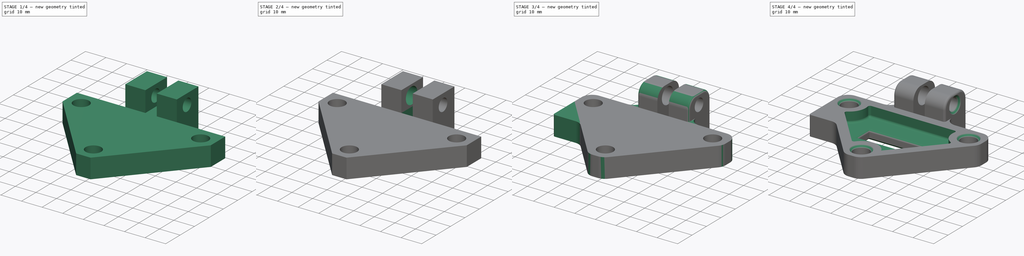
[diagram: build sequence overview — one tinted view per stage of 4, left to right]
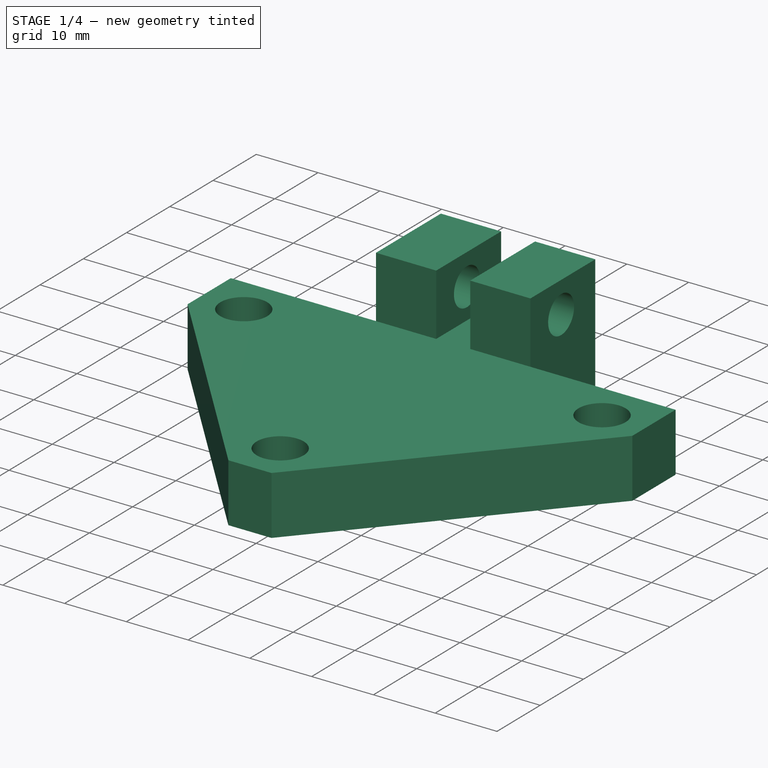
[diagram: stage 1 of 4 — iso view after this stage's code; geometry added in this stage tinted green]
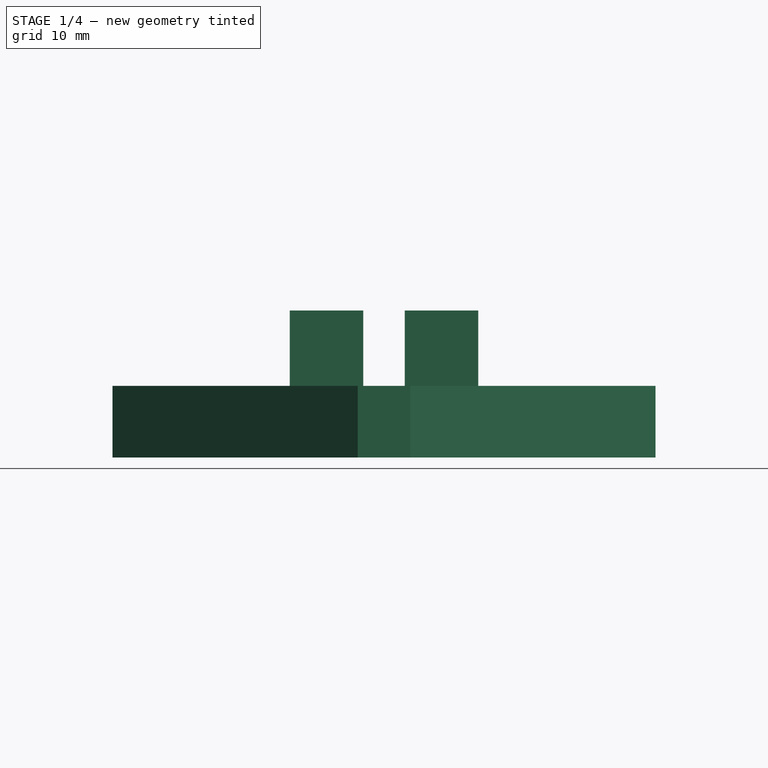
[diagram: stage 1 of 4 — front view after this stage's code; geometry added in this stage tinted green]
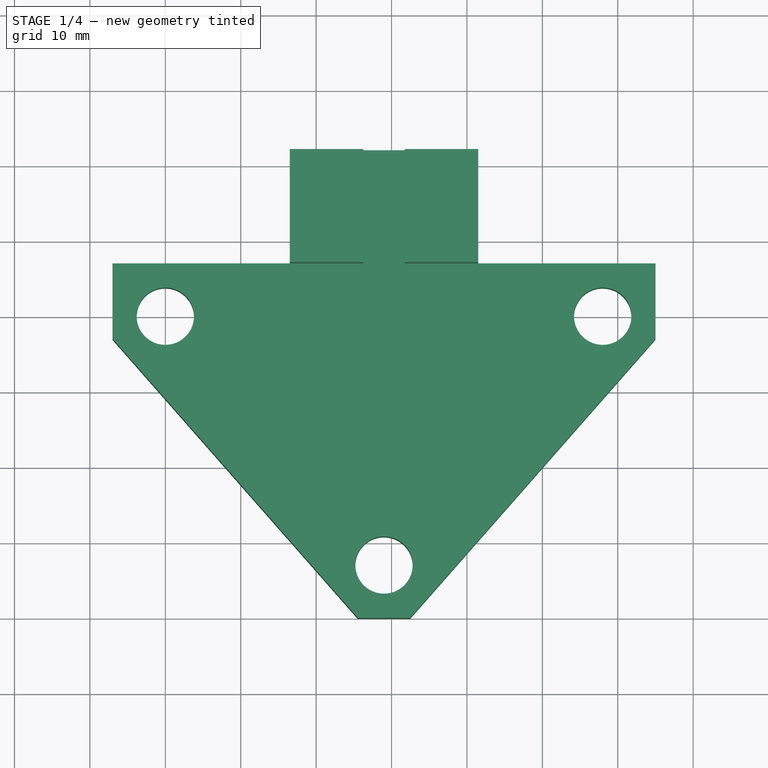
[diagram: stage 1 of 4 — top view after this stage's code; geometry added in this stage tinted green]
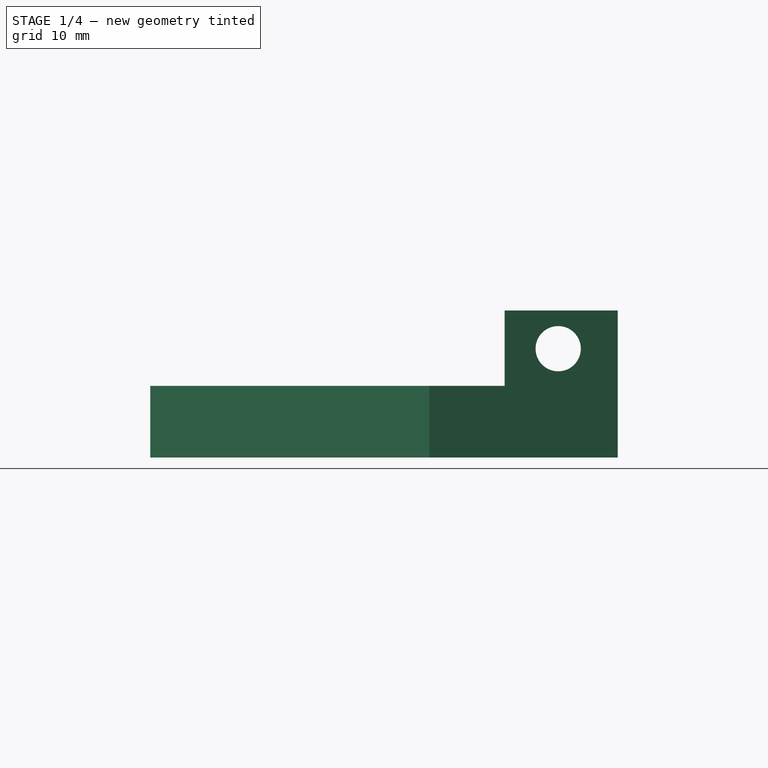
[diagram: stage 1 of 4 — right view after this stage's code; geometry added in this stage tinted green]
FCSTD DOCUMENT  (FreeCAD 0.17R11850 (Git))
Label: mini_indicator_mount
License: All rights reserved
LicenseURL: http://en.wikipedia.org/wiki/All_rights_reserved
objects: Sketcher::SketchObject×9, PartDesign::Pocket×7, PartDesign::Fillet×3, PartDesign::Pad×2, PartDesign::Chamfer×1, PartDesign::Body×1
note: 32 computed .brp shape members not serialized (recipe doc carries the construction recipe); baked Part::Feature solids carry a one-line shape summary decoded from their .brp

FEATURE [Sketcher::SketchObject] Sketch
  MapMode = 5
  Support = -> [XY_Plane]
  sketch-geometry (17):
    g0: Circle CenterX=0 CenterY=0 CenterZ=0 NormalX=0 NormalY=0 NormalZ=1 Radius=3.8
    g1: Circle CenterX=58 CenterY=0 CenterZ=0 NormalX=0 NormalY=0 NormalZ=1 Radius=3.8
    g2: Circle CenterX=29 CenterY=-33 CenterZ=0 NormalX=0 NormalY=0 NormalZ=1 Radius=3.8
    g3: LineSegment [constr] StartX=0 StartY=0 StartZ=0 EndX=58 EndY=0 EndZ=0
    g4: LineSegment [constr] StartX=29 StartY=-33 StartZ=0 EndX=29 EndY=0 EndZ=0
    g5: LineSegment StartX=-7 StartY=7 StartZ=0 EndX=-7 EndY=-3 EndZ=0
    g6: LineSegment StartX=-7 StartY=-3 StartZ=0 EndX=25.5152 EndY=-40 EndZ=0
    g7: LineSegment StartX=25.5152 StartY=-40 StartZ=0 EndX=32.4848 EndY=-40 EndZ=0
    g8: LineSegment StartX=32.4848 StartY=-40 StartZ=0 EndX=65 EndY=-3 EndZ=0
    g9: LineSegment StartX=65 StartY=-3 StartZ=0 EndX=65 EndY=7 EndZ=0
    g10: LineSegment StartX=65 StartY=7 StartZ=0 EndX=41.5 EndY=7 EndZ=0
    g11: LineSegment [constr] StartX=58 StartY=0 StartZ=0 EndX=29 EndY=-33 EndZ=0
    g12: LineSegment [constr] StartX=0 StartY=0 StartZ=0 EndX=29 EndY=-33 EndZ=0
    g13: LineSegment StartX=16.5 StartY=22 StartZ=0 EndX=41.5 EndY=22 EndZ=0
    g14: LineSegment StartX=41.5 StartY=22 StartZ=0 EndX=41.5 EndY=7 EndZ=0
    g15: LineSegment StartX=16.5 StartY=7 StartZ=0 EndX=16.5 EndY=22 EndZ=0
    g16: LineSegment StartX=16.5 StartY=7 StartZ=0 EndX=-7 EndY=7 EndZ=0
  constraints (45):
    c: Radius(g0) = 3.8
    c: Equal(g0,g1)
    c: Equal(g0,g2)
    c: Coincident(g2,g4)
    c: Coincident(g0,g3)
    c: Coincident(g1,g3)
    c: Symmetric(g1,g0,g4)
    c: Vertical(g4)
    c: Horizontal(g3)
    c: Coincident(g0,g-1)
    c: DistanceX(g3,g3) = 58
    c: DistanceY(g4,g4) = 33
    c: Vertical(g5)
    c: Coincident(g5,g6)
    c: Coincident(g6,g7)
    c: Horizontal(g7)
    c: Coincident(g7,g8)
    c: Coincident(g8,g9)
    c: Vertical(g9)
    c: Coincident(g9,g10)
    c: Coincident(g16,g5)
    c: Horizontal(g10)
    c: Equal(g8,g6)
    c: Equal(g9,g5)
    c: DistanceX(g5) = -7
    c: DistanceY(g5) = 7
    c: DistanceX(g1,g9) = 7
    c: DistanceY(g7,g2) = 7
    c: Coincident(g11,g1)
    c: Coincident(g11,g2)
    c: Parallel(g11,g8)
    c: Coincident(g12,g-1)
    c: Coincident(g12,g2)
    c: DistanceY(g9,g9) = 10
    c: Coincident(g13,g14)
    c: Coincident(g15,g13)
    c: Horizontal(g13)
    c: Vertical(g14)
    c: Vertical(g15)
    c: DistanceY(g13) = 22
    c: Coincident(g10,g14)
    c: Coincident(g16,g15)
    c: Tangent(g10,g16)
    c: DistanceX(g13,g13) = 25
    c: Equal(g16,g10)
FEATURE [PartDesign::Pad] Pad
  Length = 19.5
  Length2 = 100
  Profile = -> Sketch
  Type = 0
FEATURE [Sketcher::SketchObject] Sketch001
  ExternalGeometry = -> [Pad]
  MapMode = 5
  Placement = pos=(0,0,19.5) rot=(0,0,1;0rad)
  Support = -> [Pad]
  sketch-geometry (18):
    g0: LineSegment [constr] StartX=16.5 StartY=22 StartZ=0 EndX=26.25 EndY=22 EndZ=0
    g1: LineSegment [constr] StartX=26.25 StartY=22 StartZ=0 EndX=26.25 EndY=7 EndZ=0
    g2: LineSegment [constr] StartX=26.25 StartY=7 StartZ=0 EndX=16.5 EndY=7 EndZ=0
    g3: LineSegment [constr] StartX=16.5 StartY=7 StartZ=0 EndX=16.5 EndY=22 EndZ=0
    g4: LineSegment [constr] StartX=31.75 StartY=22 StartZ=0 EndX=41.5 EndY=22 EndZ=0
    g5: LineSegment [constr] StartX=41.5 StartY=22 StartZ=0 EndX=41.5 EndY=7 EndZ=0
    g6: LineSegment [constr] StartX=41.5 StartY=7 StartZ=0 EndX=31.75 EndY=7 EndZ=0
    g7: LineSegment [constr] StartX=31.75 StartY=7 StartZ=0 EndX=31.75 EndY=22 EndZ=0
    g8: LineSegment StartX=26.25 StartY=22 StartZ=0 EndX=31.75 EndY=22 EndZ=0
    g9: LineSegment StartX=31.75 StartY=22 StartZ=0 EndX=31.75 EndY=7 EndZ=0
    g10: LineSegment StartX=31.75 StartY=7 StartZ=0 EndX=65 EndY=7 EndZ=0
    g11: LineSegment StartX=65 StartY=7 StartZ=0 EndX=65 EndY=-3 EndZ=0
    g12: LineSegment StartX=65 StartY=-3 StartZ=0 EndX=32.4848 EndY=-40 EndZ=0
    g13: LineSegment StartX=32.4848 StartY=-40 StartZ=0 EndX=25.5152 EndY=-40 EndZ=0
    g14: LineSegment StartX=25.5152 StartY=-40 StartZ=0 EndX=-7 EndY=-3 EndZ=0
    g15: LineSegment StartX=-7 StartY=-3 StartZ=0 EndX=-7 EndY=7 EndZ=0
    g16: LineSegment StartX=-7 StartY=7 StartZ=0 EndX=26.25 EndY=7 EndZ=0
    g17: LineSegment StartX=26.25 StartY=7 StartZ=0 EndX=26.25 EndY=22 EndZ=0
  constraints (44):
    c: Coincident(g0,g1)
    c: Coincident(g1,g2)
    c: Coincident(g2,g3)
    c: Coincident(g3,g0)
    c: Horizontal(g0)
    c: Horizontal(g2)
    c: Vertical(g1)
    c: Vertical(g3)
    c: Coincident(g0,g-3)
    c: Coincident(g4,g5)
    c: Coincident(g5,g6)
    c: Coincident(g6,g7)
    c: Coincident(g7,g4)
    c: Horizontal(g4)
    c: Horizontal(g6)
    c: Vertical(g5)
    c: Vertical(g7)
    c: Coincident(g5,g-4)
    c: Coincident(g2,g-3)
    c: Coincident(g4,g-4)
    c: DistanceX(g0,g4) = 5.5
    c: Equal(g0,g4)
    c: Coincident(g0,g8)
    c: Coincident(g8,g9)
    c: Vertical(g9)
    c: Coincident(g9,g10)
    c: Coincident(g10,g11)
    c: Coincident(g11,g12)
    c: Coincident(g12,g13)
    c: Horizontal(g13)
    c: Coincident(g13,g14)
    c: Coincident(g14,g15)
    c: Coincident(g15,g16)
    c: Coincident(g16,g17)
    c: Coincident(g17,g8)
    c: Coincident(g15,g-5)
    c: Coincident(g14,g-8)
    c: Coincident(g13,g-8)
    c: Coincident(g12,g-7)
    c: Coincident(g11,g-7)
    c: Coincident(g10,g-6)
    c: Coincident(g6,g9)
    c: Coincident(g1,g16)
    c: Coincident(g4,g8)
FEATURE [PartDesign::Pocket] Pocket
  BaseFeature = -> Pad
  Length = 10
  Profile = -> Sketch001
  Type = 0
FEATURE [Sketcher::SketchObject] Sketch002
  MapMode = 5
  Placement = pos=(41.5,0,0) rot=(0.57735,0.57735,0.57735;2.0944rad)
  Support = -> [Pocket]
  sketch-geometry (1):
    g0: Circle CenterX=14.1 CenterY=14.4318 CenterZ=0 NormalX=0 NormalY=0 NormalZ=1 Radius=3
  constraints (3):
    c: DistanceX(g0) = 14.1
    c: DistanceY(g0) = 14.4318
    c: Radius(g0) = 3
FEATURE [PartDesign::Pocket] Pocket001
  BaseFeature = -> Pocket
  Length = 5
  Profile = -> Sketch002
  Type = 1
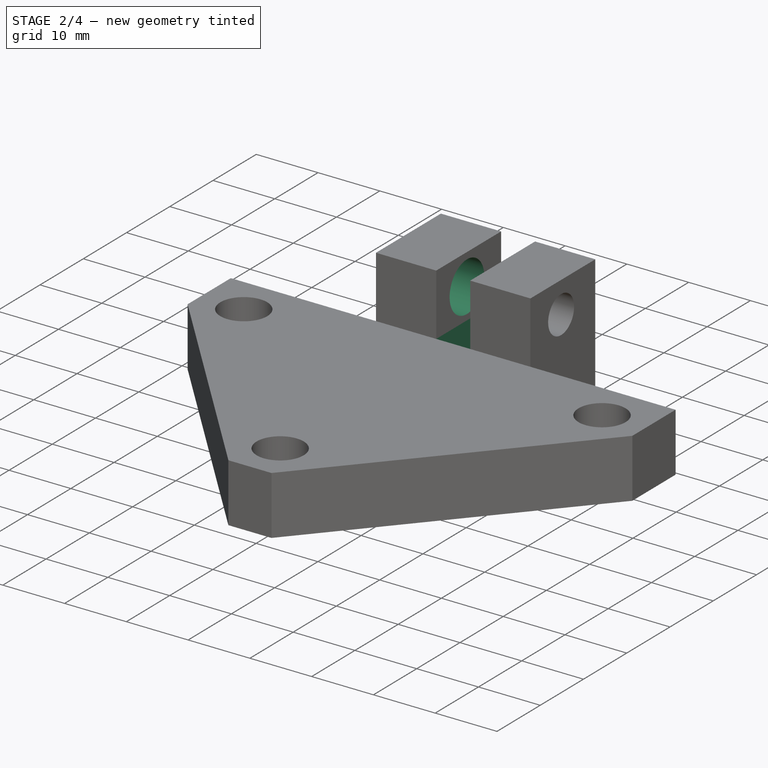
[diagram: stage 2 of 4 — iso view after this stage's code; geometry added in this stage tinted green]
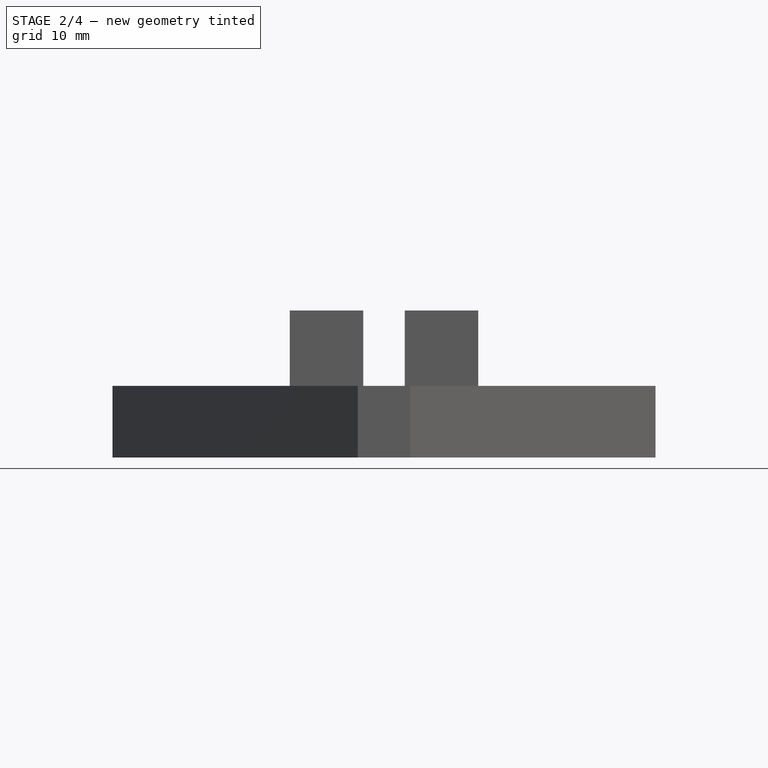
[diagram: stage 2 of 4 — front view after this stage's code; geometry added in this stage tinted green]
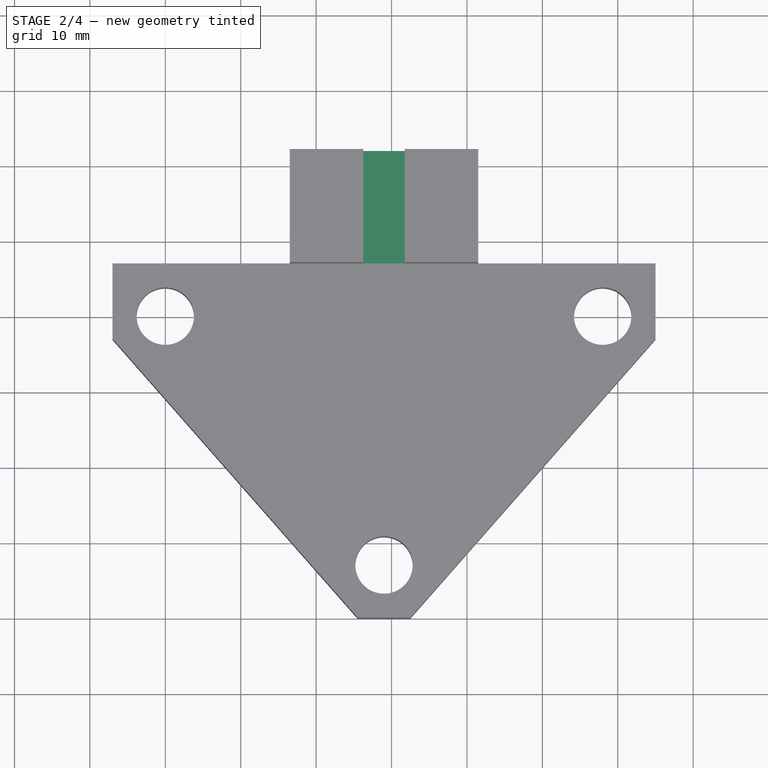
[diagram: stage 2 of 4 — top view after this stage's code; geometry added in this stage tinted green]
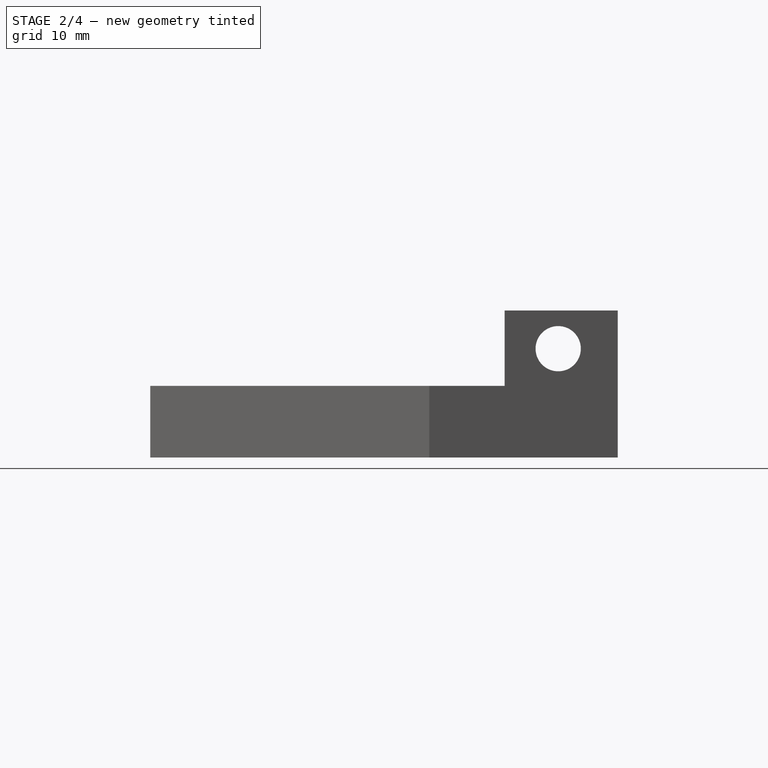
[diagram: stage 2 of 4 — right view after this stage's code; geometry added in this stage tinted green]
FEATURE [Sketcher::SketchObject] Sketch003
  ExternalGeometry = -> [Pocket001]
  MapMode = 5
  Placement = pos=(0,0,9.5) rot=(0,0,1;0rad)
  Support = -> [Pocket001]
  sketch-geometry (4):
    g0: LineSegment StartX=26.25 StartY=22 StartZ=0 EndX=31.75 EndY=22 EndZ=0
    g1: LineSegment StartX=31.75 StartY=22 StartZ=0 EndX=31.75 EndY=7 EndZ=0
    g2: LineSegment StartX=31.75 StartY=7 StartZ=0 EndX=26.25 EndY=7 EndZ=0
    g3: LineSegment StartX=26.25 StartY=7 StartZ=0 EndX=26.25 EndY=22 EndZ=0
  constraints (10):
    c: Coincident(g0,g1)
    c: Coincident(g1,g2)
    c: Coincident(g2,g3)
    c: Coincident(g3,g0)
    c: Horizontal(g0)
    c: Horizontal(g2)
    c: Vertical(g1)
    c: Vertical(g3)
    c: Coincident(g1,g-3)
    c: Coincident(g0,g-4)
FEATURE [PartDesign::Pocket] Pocket002
  BaseFeature = -> Pocket001
  Length = 5
  Profile = -> Sketch003
  Type = 0
FEATURE [Sketcher::SketchObject] Sketch004
  ExternalGeometry = -> [Pocket002]
  MapMode = 5
  Placement = pos=(16.5,0,0) rot=(0.57735,-0.57735,-0.57735;2.0944rad)
  Support = -> [Pocket002]
  sketch-geometry (1):
    g0: Circle CenterX=-14.1 CenterY=14.4318 CenterZ=0 NormalX=0 NormalY=0 NormalZ=1 Radius=4
  constraints (2):
    c: Radius(g0) = 4
    c: Coincident(g0,g-3)
FEATURE [PartDesign::Pocket] Pocket003
  BaseFeature = -> Pocket002
  Length = 13
  Profile = -> Sketch004
  Type = 0
FEATURE [Sketcher::SketchObject] Sketch005
  MapMode = 5
  Placement = pos=(0,0,0) rot=(1,0,0;3.14159rad)
  Support = -> [Pocket003]
  sketch-geometry (4):
    g0: LineSegment StartX=15 StartY=7.5 StartZ=0 EndX=43 EndY=7.5 EndZ=0
    g1: LineSegment StartX=43 StartY=7.5 StartZ=0 EndX=43 EndY=15.5 EndZ=0
    g2: LineSegment StartX=43 StartY=15.5 StartZ=0 EndX=15 EndY=15.5 EndZ=0
    g3: LineSegment StartX=15 StartY=15.5 StartZ=0 EndX=15 EndY=7.5 EndZ=0
  constraints (12):
    c: Coincident(g0,g1)
    c: Coincident(g1,g2)
    c: Coincident(g2,g3)
    c: Coincident(g3,g0)
    c: Horizontal(g0)
    c: Horizontal(g2)
    c: Vertical(g1)
    c: Vertical(g3)
    c: DistanceX(g0) = 15
    c: DistanceY(g0) = 7.5
    c: DistanceY(g1,g1) = 8
    c: DistanceX(g2,g2) = 28
FEATURE [PartDesign::Pocket] Pocket004
  BaseFeature = -> Pocket003
  Length = 7
  Profile = -> Sketch005
  Type = 0
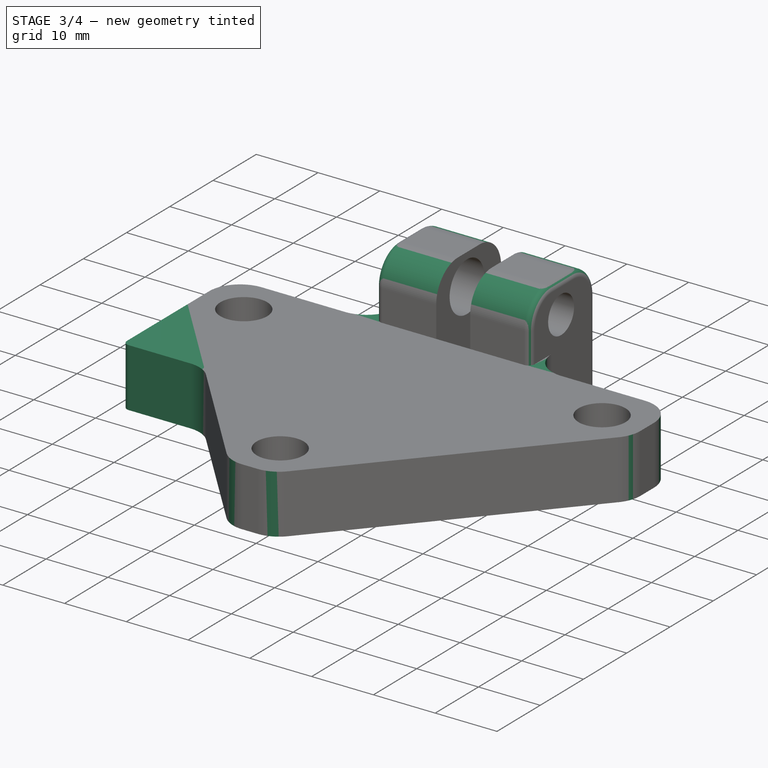
[diagram: stage 3 of 4 — iso view after this stage's code; geometry added in this stage tinted green]
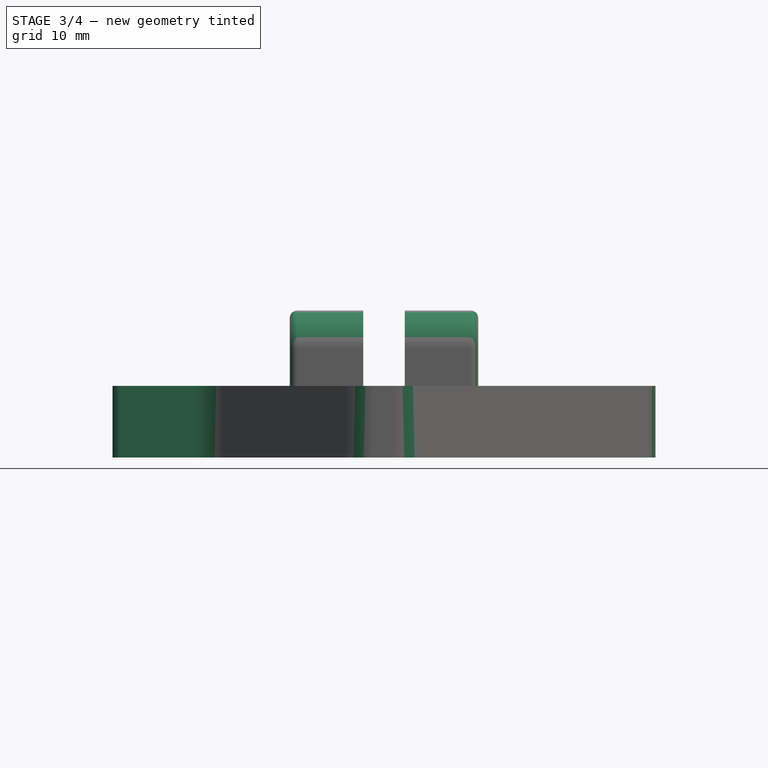
[diagram: stage 3 of 4 — front view after this stage's code; geometry added in this stage tinted green]
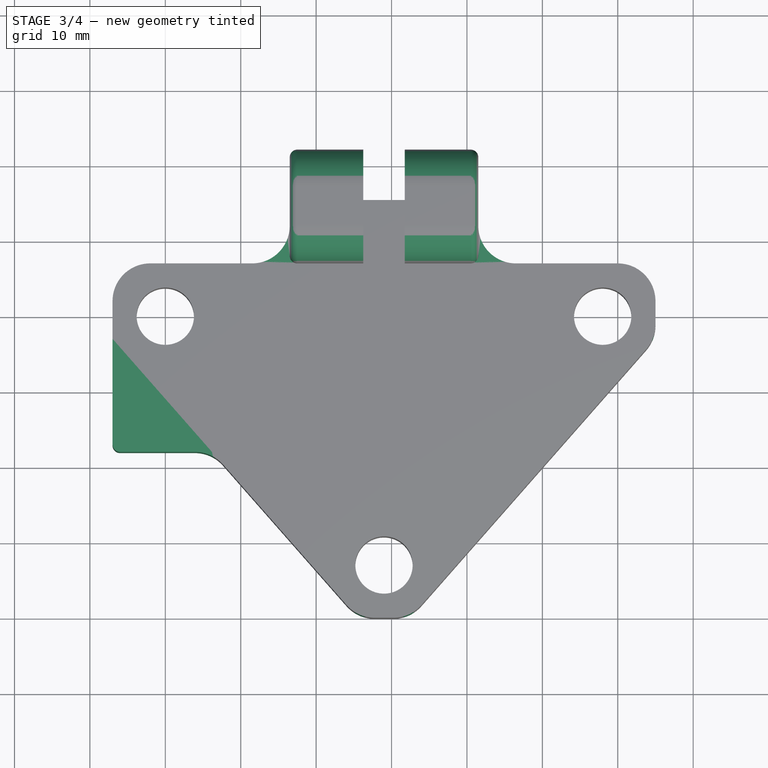
[diagram: stage 3 of 4 — top view after this stage's code; geometry added in this stage tinted green]
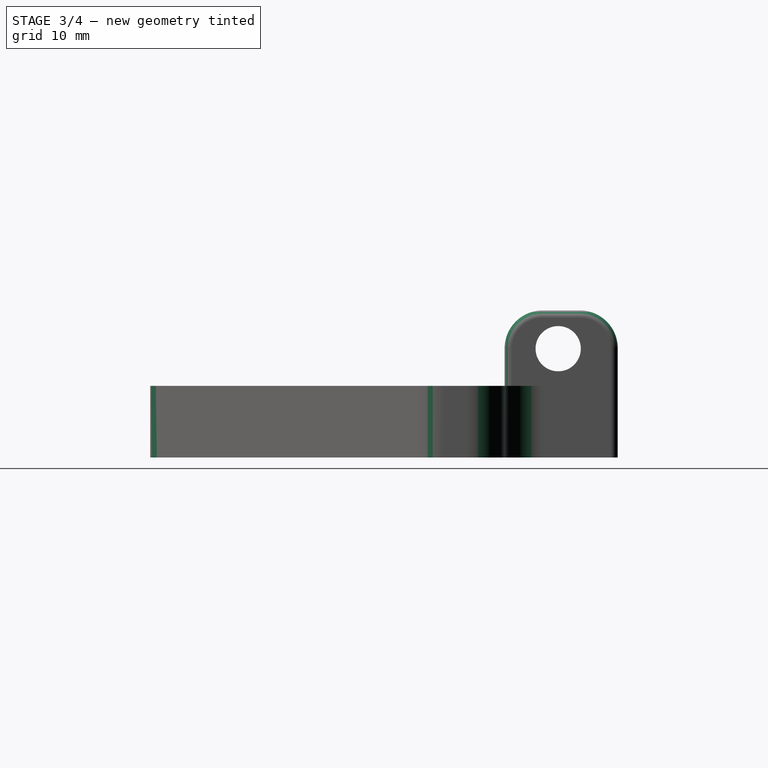
[diagram: stage 3 of 4 — right view after this stage's code; geometry added in this stage tinted green]
FEATURE [Sketcher::SketchObject] Sketch006
  ExternalGeometry = -> [Pocket004]
  MapMode = 5
  Placement = pos=(0,0,9.5) rot=(0,0,1;0rad)
  Support = -> [Pocket004]
  sketch-geometry (3):
    g0: LineSegment StartX=6.18182 StartY=-18 StartZ=0 EndX=-7 EndY=-18 EndZ=0
    g1: LineSegment StartX=-7 StartY=-18 StartZ=0 EndX=-7 EndY=-3 EndZ=0
    g2: LineSegment StartX=-7 StartY=-3 StartZ=0 EndX=6.18182 EndY=-18 EndZ=0
  constraints (8):
    c: Coincident(g0,g1)
    c: Horizontal(g0)
    c: Vertical(g1)
    c: PointOnObject(g0,g-3)
    c: Coincident(g2,g1)
    c: Coincident(g2,g0)
    c: Coincident(g1,g-3)
    c: DistanceY(g1,g1) = 15
FEATURE [PartDesign::Pad] Pad001
  BaseFeature = -> Pocket004
  Length = 9.5
  Length2 = 100
  Profile = -> Sketch006
  Reversed = true
  Type = 0
FEATURE [Sketcher::SketchObject] Sketch007
  ExternalGeometry = -> [Pad001]
  MapMode = 5
  Placement = pos=(0,0,0) rot=(1,0,0;3.14159rad)
  Support = -> [Pad001]
  sketch-geometry (6):
    g0: LineSegment StartX=25.75 StartY=-22 StartZ=0 EndX=32.25 EndY=-22 EndZ=0
    g1: LineSegment StartX=32.25 StartY=-22 StartZ=0 EndX=32.25 EndY=-15.5 EndZ=0
    g2: LineSegment StartX=32.25 StartY=-15.5 StartZ=0 EndX=25.75 EndY=-15.5 EndZ=0
    g3: LineSegment StartX=25.75 StartY=-15.5 StartZ=0 EndX=25.75 EndY=-22 EndZ=0
    g4: LineSegment [constr] StartX=16.5 StartY=-22 StartZ=0 EndX=25.75 EndY=-22 EndZ=0
    g5: LineSegment [constr] StartX=32.25 StartY=-22 StartZ=0 EndX=41.5 EndY=-22 EndZ=0
  constraints (18):
    c: Coincident(g0,g1)
    c: Coincident(g1,g2)
    c: Coincident(g2,g3)
    c: Coincident(g3,g0)
    c: Horizontal(g0)
    c: Horizontal(g2)
    c: Vertical(g1)
    c: Vertical(g3)
    c: PointOnObject(g0,g-3)
    c: DistanceY(g1,g1) = 6.5
    c: Equal(g2,g1)
    c: Horizontal(g4)
    c: Horizontal(g5)
    c: Equal(g5,g4)
    c: Coincident(g5,g-3)
    c: Coincident(g0,g5)
    c: Coincident(g0,g4)
    c: Coincident(g4,g-3)
FEATURE [PartDesign::Pocket] Pocket005
  BaseFeature = -> Pad001
  Length = 5
  Profile = -> Sketch007
  Type = 0
FEATURE [PartDesign::Fillet] Fillet
  Base = -> Pocket005 [Edge70,Edge71,Edge72,Edge2,Edge69,Edge68,Edge60,Edge48,Edge88,Edge93,Edge65,Edge4]
  BaseFeature = -> Pocket005
  Radius = 5
FEATURE [PartDesign::Fillet] Fillet001
  Base = -> Fillet [Edge63,Edge92,Edge139]
  BaseFeature = -> Fillet
  Radius = 1
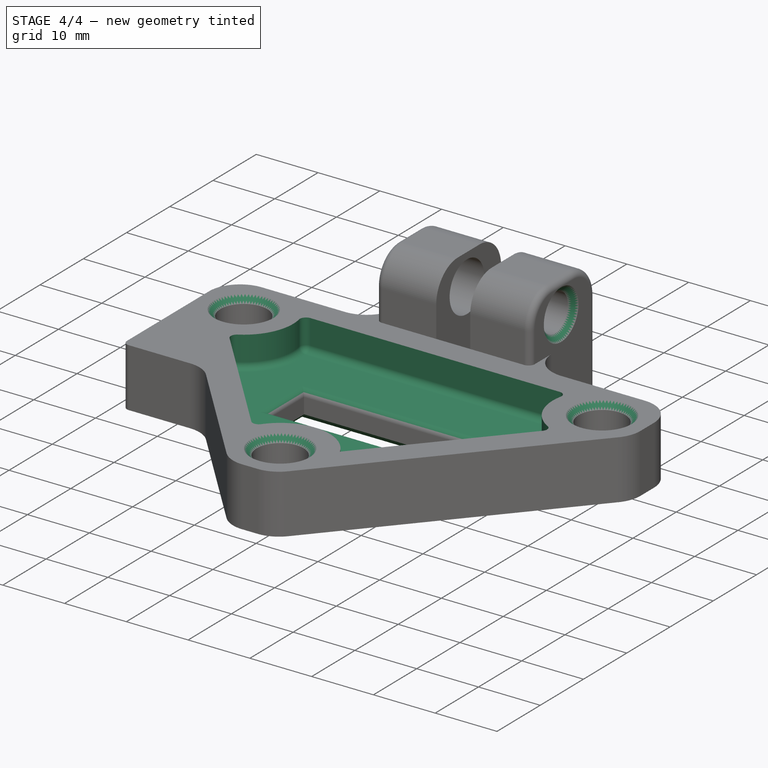
[diagram: stage 4 of 4 — iso view after this stage's code; geometry added in this stage tinted green]
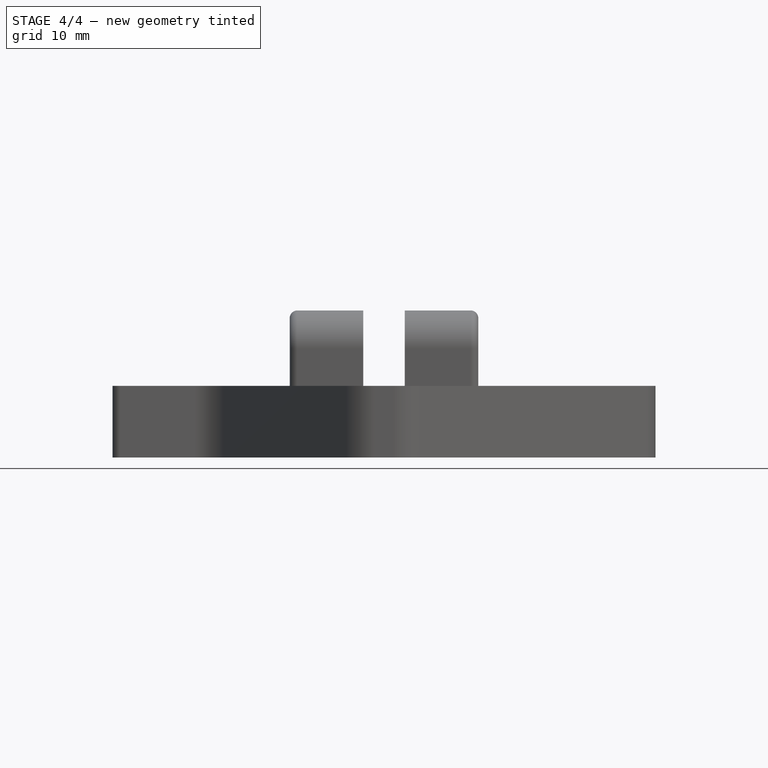
[diagram: stage 4 of 4 — front view after this stage's code; geometry added in this stage tinted green]
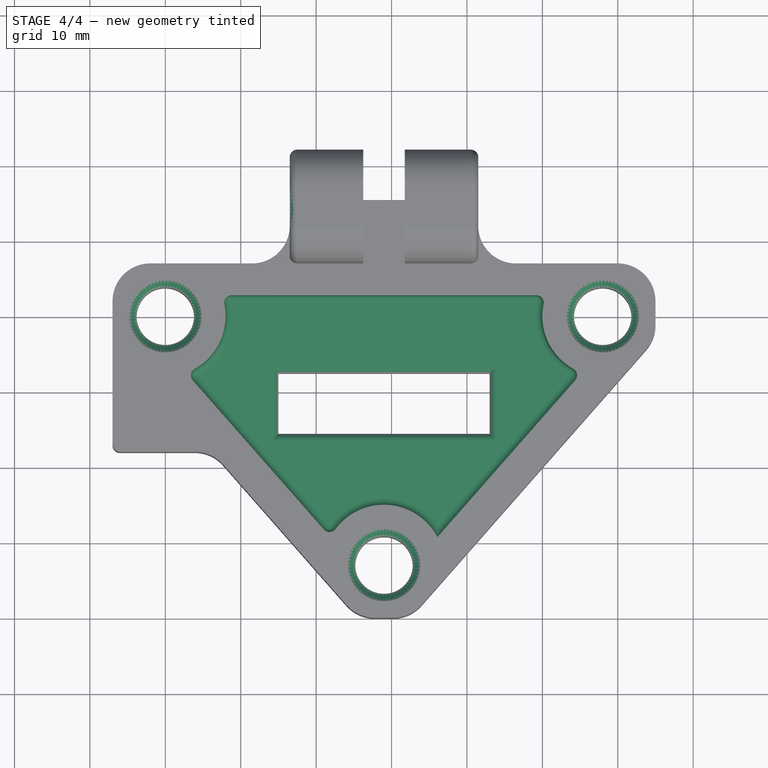
[diagram: stage 4 of 4 — top view after this stage's code; geometry added in this stage tinted green]
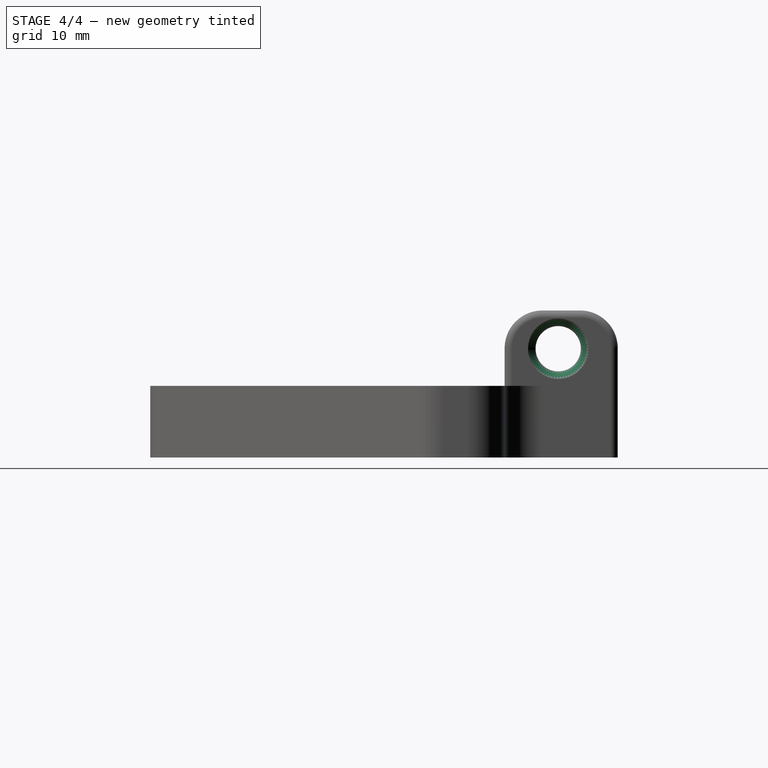
[diagram: stage 4 of 4 — right view after this stage's code; geometry added in this stage tinted green]
FEATURE [PartDesign::Chamfer] Chamfer
  Base = -> Fillet001 [Edge40,Edge86,Face27,Face26,Face32,Edge28,Edge29,Edge31,Edge30]
  BaseFeature = -> Fillet001
  Size = 1
FEATURE [Sketcher::SketchObject] Sketch008
  ExternalGeometry = -> [Chamfer]
  MapMode = 5
  Placement = pos=(0,0,9.5) rot=(0,0,1;0rad)
  Support = -> [Chamfer]
  sketch-geometry (6):
    g0: ArcOfCircle CenterX=0 CenterY=0 CenterZ=0 NormalX=0 NormalY=0 NormalZ=1 Radius=8 StartAngle=5.06588 EndAngle=6.63861
    g1: ArcOfCircle CenterX=29 CenterY=-33 CenterZ=0 NormalX=0 NormalY=0 NormalZ=1 Radius=8 StartAngle=0.482344 EndAngle=2.65925
    g2: ArcOfCircle CenterX=58 CenterY=0 CenterZ=0 NormalX=0 NormalY=0 NormalZ=1 Radius=8 StartAngle=2.78617 EndAngle=4.3589
    g3: LineSegment StartX=50.5 StartY=2.78388 StartZ=0 EndX=7.5 EndY=2.78388 EndZ=0
    g4: LineSegment StartX=2.7694 StartY=-7.50536 StartZ=0 EndX=21.9127 EndY=-29.2891 EndZ=0
    g5: LineSegment StartX=36.0873 StartY=-29.2891 StartZ=0 EndX=55.2306 EndY=-7.50536 EndZ=0
  constraints (18):
    c: Horizontal(g3)
    c: Coincident(g2,g-3)
    c: Coincident(g2,g3)
    c: Coincident(g2,g5)
    c: Coincident(g0,g3)
    c: Coincident(g0,g-1)
    c: Coincident(g0,g4)
    c: Coincident(g1,g4)
    c: Coincident(g1,g-4)
    c: Coincident(g1,g5)
    c: Parallel(g4,g-6)
    c: Parallel(g5,g-5)
    c: Equal(g5,g4)
    c: Radius(g1) = 8
    c: Equal(g1,g2)
    c: Equal(g1,g0)
    c: DistanceX(g3,g3) = 43
    c: Distance(g4) = 29
FEATURE [PartDesign::Pocket] Pocket006
  BaseFeature = -> Chamfer
  Length = 5
  Profile = -> Sketch008
  Type = 0
FEATURE [PartDesign::Fillet] Fillet002
  Base = -> Pocket006 [Edge221,Edge220,Edge219,Edge216,Edge217,Face64]
  BaseFeature = -> Pocket006
  Radius = 1
FEATURE [PartDesign::Body] Body
  Group = -> [Sketch,Pad,Sketch001,Sketch002,Sketch003,Sketch004,Sketch005,Pocket,Pocket001,Pocket002,Pocket003,Pocket004,Sketch006,Pad001,Sketch007,Pocket005,Fillet,Fillet001,Chamfer,Sketch008,Pocket006,Fillet002]
  Origin = -> Origin
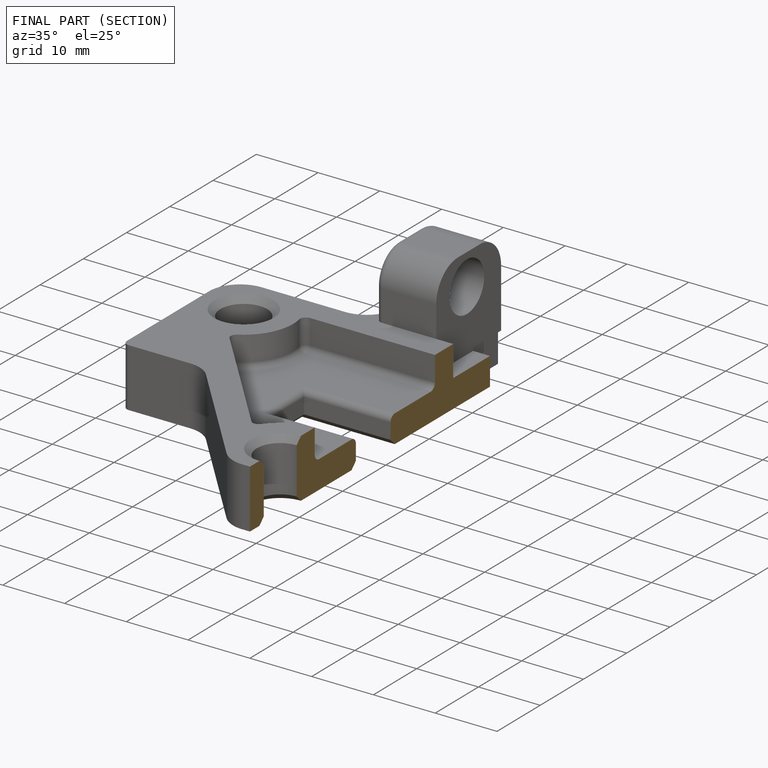
[diagram: finished part — half-section view (interior)]
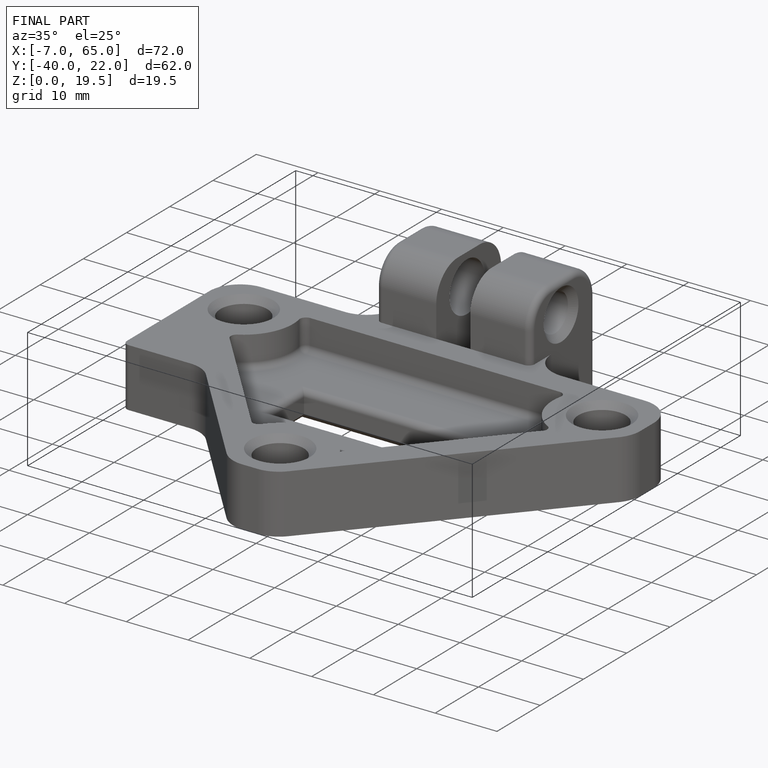
[diagram: finished part — iso view with bounding-box wireframe]
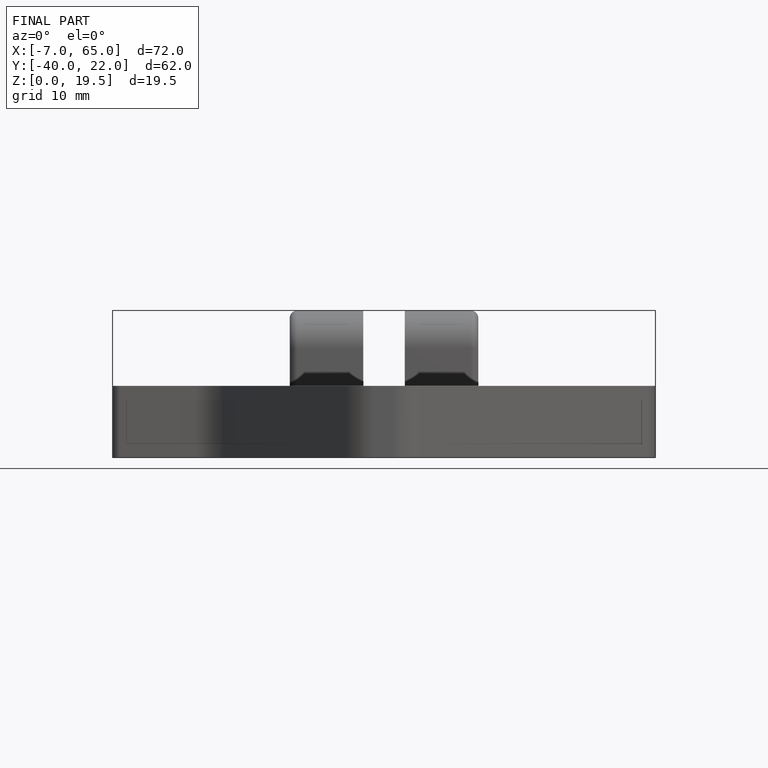
[diagram: finished part — front view with bounding-box wireframe]
